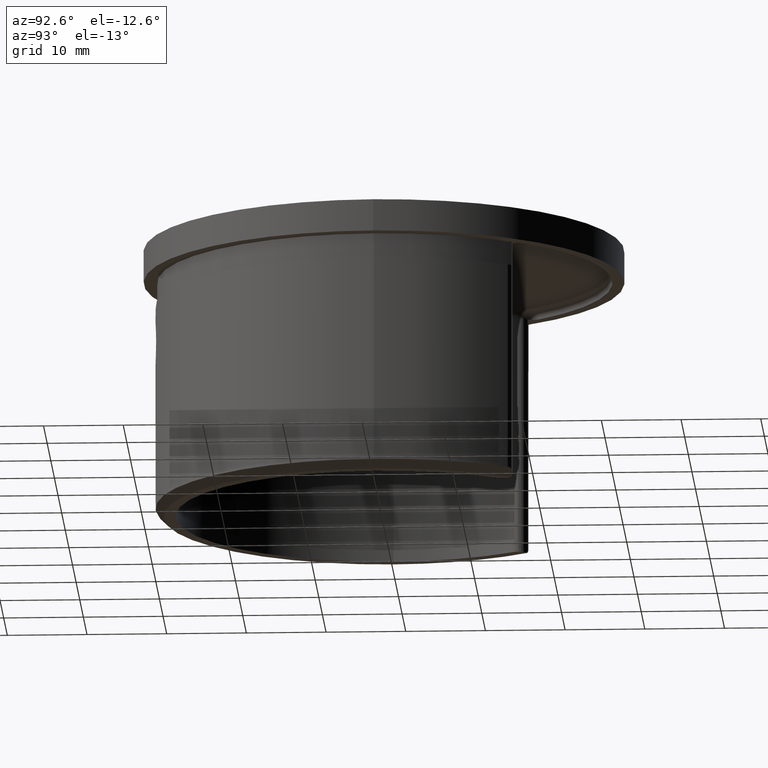
[diagram: clean part render]
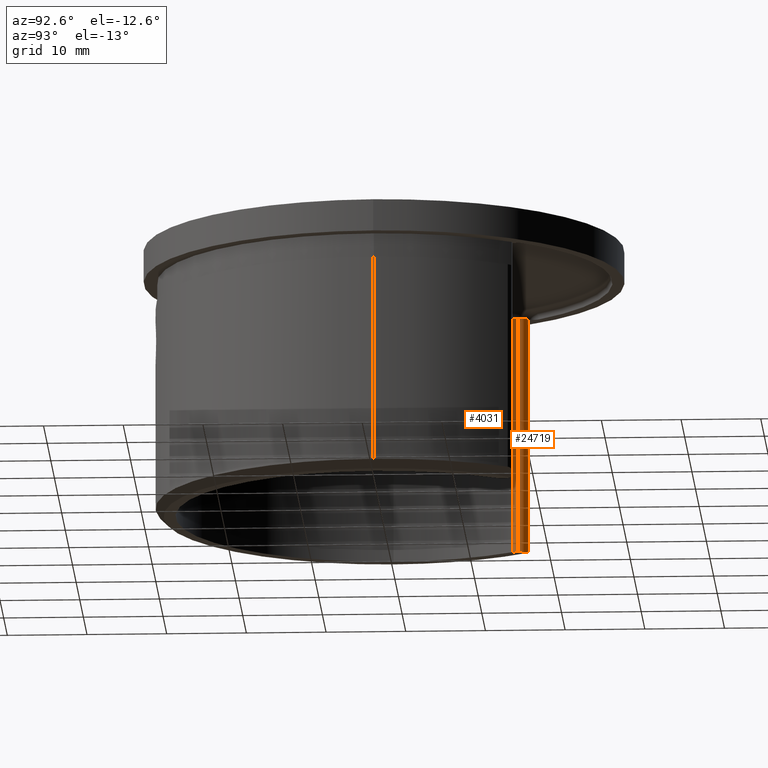
[diagram: same view with one multi-face feature highlighted, each face labeled with its STEP entity id]
A machine part, auxiliary view. The highlighted faces form ONE feature: a constant-radius fillet chain: 2 tangent blend faces with common blend radius 1.25 mm. The faces share edges in the B-rep.
Their STEP definitions:
[1] entity #24719 (Cylinder):
#464 = ORIENTED_EDGE ( 'NONE', *, *, #25150, .T. ) ;
#558 = CARTESIAN_POINT ( 'NONE',  ( -22.70972764288495327, 17.06859438258046779, -29.24124123761774285 ) ) ;
#975 = EDGE_CURVE ( 'NONE', #8086, #10255, #23906, .T. ) ;
#2045 = EDGE_CURVE ( 'NONE', #18590, #14378, #20517, .T. ) ;
#2201 = CARTESIAN_POINT ( 'NONE',  ( -22.33859141806065196, 15.86654762249642125, -3.000000000000002665 ) ) ;
#2291 = CARTESIAN_POINT ( 'NONE',  ( -23.35768774187729946, 16.59038647388766918, -28.99999999999997868 ) ) ;
#2375 = CARTESIAN_POINT ( 'NONE',  ( -22.43068347972054966, 17.12120995276086788, -29.43191497953686309 ) ) ;
#3328 = CARTESIAN_POINT ( 'NONE',  ( -22.78761868766939358, 17.03311288477184249, 0.000000000000000000 ) ) ;
#3376 = CARTESIAN_POINT ( 'NONE',  ( -22.33859141806065196, 15.86654762249642125, 0.000000000000000000 ) ) ;
#4091 = EDGE_CURVE ( 'NONE', #15819, #8632, #16176, .T. ) ;
#4351 = CARTESIAN_POINT ( 'NONE',  ( -23.35768774187729946, 16.59038647388766918, -30.00000000000000000 ) ) ;
#5158 = CYLINDRICAL_SURFACE ( 'NONE', #23616, 1.250000000000001110 ) ;
#5616 = CARTESIAN_POINT ( 'NONE',  ( -23.35768774187729946, 16.59038647388766918, -28.99999999999997868 ) ) ;
#5961 = AXIS2_PLACEMENT_3D ( 'NONE', #2201, #8009, #21537 ) ;
#6089 = AXIS2_PLACEMENT_3D ( 'NONE', #23612, #13869, #19998 ) ;
#6555 = CARTESIAN_POINT ( 'NONE',  ( -21.80782859135647556, 16.99826791558521677, -30.00000000000000000 ) ) ;
#6882 = ORIENTED_EDGE ( 'NONE', *, *, #15012, .T. ) ;
#7452 = AXIS2_PLACEMENT_3D ( 'NONE', #16057, #14192, #21872 ) ;
#7891 = FACE_OUTER_BOUND ( 'NONE', #12406, .T. ) ;
#8009 = DIRECTION ( 'NONE',  ( 0.000000000000000000, 0.000000000000000000, -1.000000000000000000 ) ) ;
#8086 = VERTEX_POINT ( 'NONE', #17310 ) ;
#8623 = CARTESIAN_POINT ( 'NONE',  ( -21.08859141806065196, 15.86654762249642125, -30.00000000000000000 ) ) ;
#8632 = VERTEX_POINT ( 'NONE', #22568 ) ;
#9195 = DIRECTION ( 'NONE',  ( -0.000000000000000000, -0.000000000000000000, 1.000000000000000000 ) ) ;
#10034 = CIRCLE ( 'NONE', #5961, 1.250000000000001110 ) ;
#10247 = CARTESIAN_POINT ( 'NONE',  ( -22.29469907132256523, 17.12244421972867059, -29.53901300493203053 ) ) ;
#10255 = VERTEX_POINT ( 'NONE', #20480 ) ;
#10318 = ORIENTED_EDGE ( 'NONE', *, *, #12395, .T. ) ;
#10831 = ORIENTED_EDGE ( 'NONE', *, *, #18088, .F. ) ;
#10914 = VECTOR ( 'NONE', #11336, 1000.000000000000000 ) ;
#11336 = DIRECTION ( 'NONE',  ( -0.000000000000000000, -0.000000000000000000, 1.000000000000000000 ) ) ;
#11426 = VERTEX_POINT ( 'NONE', #6555 ) ;
#12395 = EDGE_CURVE ( 'NONE', #14378, #18678, #10034, .T. ) ;
#12406 = EDGE_LOOP ( 'NONE', ( #15714, #10831, #20582, #14633, #10318, #6882, #13762, #464 ) ) ;
#13303 = CARTESIAN_POINT ( 'NONE',  ( -22.78761868766939003, 17.03311288477183894, -1.500000000000001554 ) ) ;
#13429 = AXIS2_PLACEMENT_3D ( 'NONE', #3376, #24563, #20653 ) ;
#13762 = ORIENTED_EDGE ( 'NONE', *, *, #4091, .T. ) ;
#13807 = DIRECTION ( 'NONE',  ( 1.000000000000000000, 0.000000000000000000, 0.000000000000000000 ) ) ;
#13869 = DIRECTION ( 'NONE',  ( 0.000000000000000000, 0.000000000000000000, -1.000000000000000000 ) ) ;
#14018 = CARTESIAN_POINT ( 'NONE',  ( -21.91940700361804772, 17.05059681156134133, -29.87982699882006798 ) ) ;
#14192 = DIRECTION ( 'NONE',  ( 0.000000000000000000, 0.000000000000000000, -1.000000000000000000 ) ) ;
#14378 = VERTEX_POINT ( 'NONE', #19892 ) ;
#14633 = ORIENTED_EDGE ( 'NONE', *, *, #2045, .T. ) ;
#15012 = EDGE_CURVE ( 'NONE', #18678, #15819, #20390, .T. ) ;
#15273 = CARTESIAN_POINT ( 'NONE',  ( -22.78761868766939003, 17.03311288477183894, -3.000000000000001776 ) ) ;
#15714 = ORIENTED_EDGE ( 'NONE', *, *, #975, .F. ) ;
#15819 = VERTEX_POINT ( 'NONE', #3328 ) ;
#15837 = CIRCLE ( 'NONE', #6089, 1.250000000000001110 ) ;
#16047 = CARTESIAN_POINT ( 'NONE',  ( -23.12928140702180713, 16.84811214947086810, -29.03531670291648936 ) ) ;
#16057 = CARTESIAN_POINT ( 'NONE',  ( -22.33859141806065196, 15.86654762249642125, -30.00000000000000000 ) ) ;
#16176 = CIRCLE ( 'NONE', #13429, 1.250000000000001110 ) ;
#17310 = CARTESIAN_POINT ( 'NONE',  ( -21.08859141806065196, 15.86654762249642125, -30.00000000000000000 ) ) ;
#17841 = CARTESIAN_POINT ( 'NONE',  ( -21.80782859135647556, 16.99826791558521677, -30.00000000000000000 ) ) ;
#18088 = EDGE_CURVE ( 'NONE', #11426, #8086, #20004, .T. ) ;
#18094 = CARTESIAN_POINT ( 'NONE',  ( -22.85341238312751599, 17.01703402101905382, -29.15727350336856105 ) ) ;
#18590 = VERTEX_POINT ( 'NONE', #5616 ) ;
#18678 = VERTEX_POINT ( 'NONE', #15273 ) ;
#18732 = VECTOR ( 'NONE', #20061, 1000.000000000000000 ) ;
#19892 = CARTESIAN_POINT ( 'NONE',  ( -23.35768774187729591, 16.59038647388766563, -3.000000000000001332 ) ) ;
#19961 = EDGE_CURVE ( 'NONE', #11426, #18590, #24100, .T. ) ;
#19998 = DIRECTION ( 'NONE',  ( -1.000000000000000000, 0.000000000000000000, 0.000000000000000000 ) ) ;
#20004 = CIRCLE ( 'NONE', #7452, 1.250000000000001110 ) ;
#20061 = DIRECTION ( 'NONE',  ( -0.000000000000000000, -0.000000000000000000, 1.000000000000000000 ) ) ;
#20390 = LINE ( 'NONE', #13303, #10914 ) ;
#20480 = CARTESIAN_POINT ( 'NONE',  ( -21.08859141806065196, 15.86654762249642125, 0.000000000000000000 ) ) ;
#20517 = LINE ( 'NONE', #4351, #24792 ) ;
#20582 = ORIENTED_EDGE ( 'NONE', *, *, #19961, .T. ) ;
#20653 = DIRECTION ( 'NONE',  ( 1.000000000000000000, 0.000000000000000000, 0.000000000000000000 ) ) ;
#21537 = DIRECTION ( 'NONE',  ( -1.000000000000000000, 0.000000000000000000, 0.000000000000000000 ) ) ;
#21581 = CARTESIAN_POINT ( 'NONE',  ( -22.33859141806065196, 15.86654762249642125, -30.00000000000000000 ) ) ;
#21777 = CARTESIAN_POINT ( 'NONE',  ( -22.03867635189681806, 17.08689747156826400, -29.76342244652688507 ) ) ;
#21872 = DIRECTION ( 'NONE',  ( -1.000000000000000000, 0.000000000000000000, 0.000000000000000000 ) ) ;
#22568 = CARTESIAN_POINT ( 'NONE',  ( -21.68846372816175005, 16.93417770207769379, 0.000000000000000000 ) ) ;
#23544 = DIRECTION ( 'NONE',  ( -0.000000000000000000, -0.000000000000000000, 1.000000000000000000 ) ) ;
#23612 = CARTESIAN_POINT ( 'NONE',  ( -22.33859141806065196, 15.86654762249642125, 0.000000000000000000 ) ) ;
#23616 = AXIS2_PLACEMENT_3D ( 'NONE', #21581, #23544, #13807 ) ;
#23906 = LINE ( 'NONE', #8623, #18732 ) ;
#24006 = CARTESIAN_POINT ( 'NONE',  ( -23.25720792848235163, 16.73185250358776699, -28.99999999999965894 ) ) ;
#24100 = B_SPLINE_CURVE_WITH_KNOTS ( 'NONE', 3,
 ( #17841, #14018, #21777, #10247, #2375, #558, #18094, #16047, #24006, #2291 ),
 .UNSPECIFIED., .F., .F.,
 ( 4, 2, 2, 2, 4 ),
 ( 0.000000000000000000, 0.0005114157322375729661, 0.001022831464475145932, 0.001534247196712718898, 0.002045662928950291864 ),
 .UNSPECIFIED. ) ;
#24563 = DIRECTION ( 'NONE',  ( -0.000000000000000000, -0.000000000000000000, -1.000000000000000000 ) ) ;
#24719 = ADVANCED_FACE ( 'NONE', ( #7891 ), #5158, .T. ) ;
#24792 = VECTOR ( 'NONE', #9195, 1000.000000000000000 ) ;
#25150 = EDGE_CURVE ( 'NONE', #8632, #10255, #15837, .T. ) ;
[2] entity #4031 (Cylinder):
#893 = DIRECTION ( 'NONE',  ( 1.000000000000000000, 0.000000000000000000, 0.000000000000000000 ) ) ;
#975 = EDGE_CURVE ( 'NONE', #8086, #10255, #23906, .T. ) ;
#1287 = AXIS2_PLACEMENT_3D ( 'NONE', #15202, #22808, #3483 ) ;
#1647 = AXIS2_PLACEMENT_3D ( 'NONE', #9134, #11030, #14955 ) ;
#2847 = ORIENTED_EDGE ( 'NONE', *, *, #18979, .T. ) ;
#2960 = CARTESIAN_POINT ( 'NONE',  ( -21.31949509424402578, 15.14270877110515379, 0.000000000000000000 ) ) ;
#3038 = DIRECTION ( 'NONE',  ( -0.000000000000000000, -0.000000000000000000, 1.000000000000000000 ) ) ;
#3396 = ORIENTED_EDGE ( 'NONE', *, *, #975, .T. ) ;
#3483 = DIRECTION ( 'NONE',  ( -1.000000000000000000, 0.000000000000000000, 0.000000000000000000 ) ) ;
#4031 = ADVANCED_FACE ( 'NONE', ( #9482 ), #12851, .T. ) ;
#7628 = EDGE_CURVE ( 'NONE', #8086, #24102, #8762, .T. ) ;
#8086 = VERTEX_POINT ( 'NONE', #17310 ) ;
#8623 = CARTESIAN_POINT ( 'NONE',  ( -21.08859141806065196, 15.86654762249642125, -30.00000000000000000 ) ) ;
#8762 = CIRCLE ( 'NONE', #1647, 1.250000000000001110 ) ;
#9134 = CARTESIAN_POINT ( 'NONE',  ( -22.33859141806065196, 15.86654762249642125, -30.00000000000000000 ) ) ;
#9482 = FACE_OUTER_BOUND ( 'NONE', #14820, .T. ) ;
#10255 = VERTEX_POINT ( 'NONE', #20480 ) ;
#10812 = ORIENTED_EDGE ( 'NONE', *, *, #7628, .F. ) ;
#11030 = DIRECTION ( 'NONE',  ( 0.000000000000000000, 0.000000000000000000, -1.000000000000000000 ) ) ;
#11042 = DIRECTION ( 'NONE',  ( -0.000000000000000000, -0.000000000000000000, 1.000000000000000000 ) ) ;
#11466 = CIRCLE ( 'NONE', #1287, 1.250000000000001110 ) ;
#12773 = ORIENTED_EDGE ( 'NONE', *, *, #23823, .F. ) ;
#12851 = CYLINDRICAL_SURFACE ( 'NONE', #19612, 1.250000000000001110 ) ;
#14820 = EDGE_LOOP ( 'NONE', ( #10812, #3396, #2847, #12773 ) ) ;
#14955 = DIRECTION ( 'NONE',  ( -1.000000000000000000, 0.000000000000000000, 0.000000000000000000 ) ) ;
#15202 = CARTESIAN_POINT ( 'NONE',  ( -22.33859141806065196, 15.86654762249642125, 0.000000000000000000 ) ) ;
#17310 = CARTESIAN_POINT ( 'NONE',  ( -21.08859141806065196, 15.86654762249642125, -30.00000000000000000 ) ) ;
#18551 = VERTEX_POINT ( 'NONE', #2960 ) ;
#18732 = VECTOR ( 'NONE', #20061, 1000.000000000000000 ) ;
#18942 = LINE ( 'NONE', #22740, #19548 ) ;
#18979 = EDGE_CURVE ( 'NONE', #10255, #18551, #11466, .T. ) ;
#19548 = VECTOR ( 'NONE', #11042, 1000.000000000000000 ) ;
#19612 = AXIS2_PLACEMENT_3D ( 'NONE', #22276, #3038, #893 ) ;
#20061 = DIRECTION ( 'NONE',  ( -0.000000000000000000, -0.000000000000000000, 1.000000000000000000 ) ) ;
#20480 = CARTESIAN_POINT ( 'NONE',  ( -21.08859141806065196, 15.86654762249642125, 0.000000000000000000 ) ) ;
#22276 = CARTESIAN_POINT ( 'NONE',  ( -22.33859141806065196, 15.86654762249642125, -30.00000000000000000 ) ) ;
#22740 = CARTESIAN_POINT ( 'NONE',  ( -21.31949509424402578, 15.14270877110515379, -30.00000000000000000 ) ) ;
#22808 = DIRECTION ( 'NONE',  ( 0.000000000000000000, 0.000000000000000000, -1.000000000000000000 ) ) ;
#23495 = CARTESIAN_POINT ( 'NONE',  ( -21.31949509424402578, 15.14270877110515379, -30.00000000000000000 ) ) ;
#23823 = EDGE_CURVE ( 'NONE', #24102, #18551, #18942, .T. ) ;
#23906 = LINE ( 'NONE', #8623, #18732 ) ;
#24102 = VERTEX_POINT ( 'NONE', #23495 ) ;